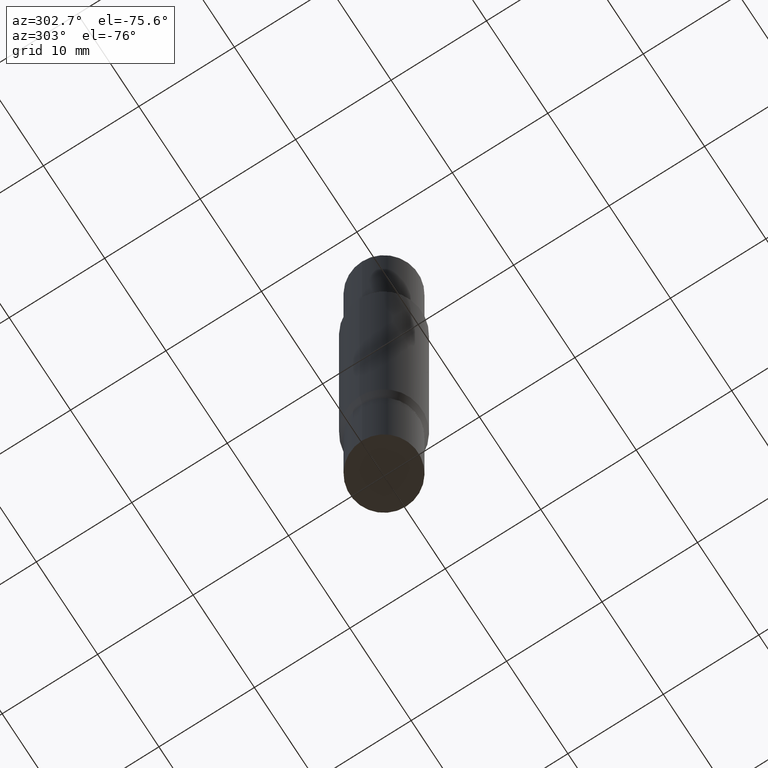
[diagram: clean part render]
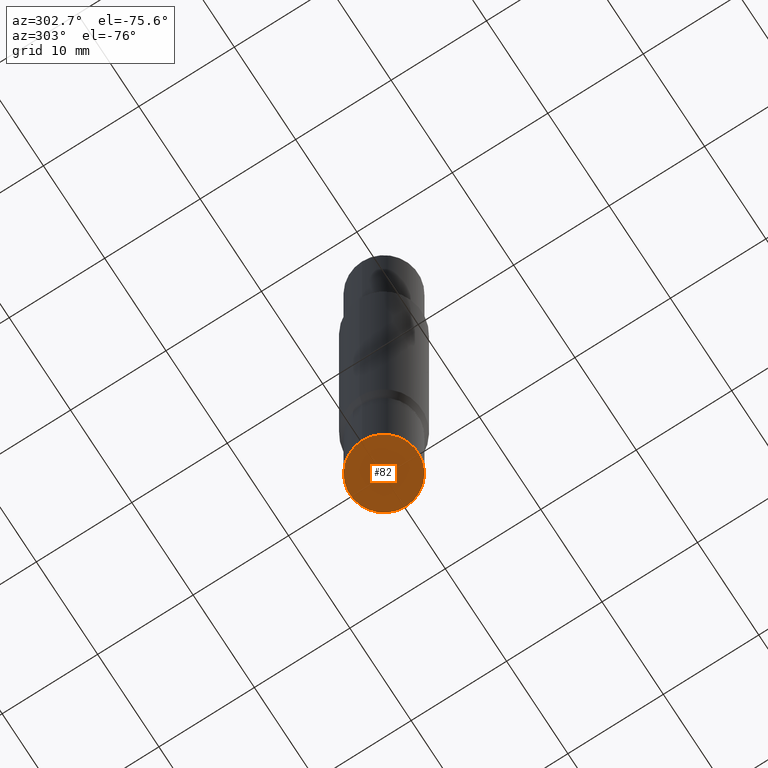
[diagram: same view with one face highlighted and labeled with its STEP entity id]
A machine part, auxiliary view. The second image highlights one B-rep face of the part: STEP entity #82.
In plain terms, the highlighted planar face has unit normal (-0, 0, 1).
Its self-contained STEP definition (entity closure, byte-faithful):
#20 = AXIS2_PLACEMENT_3D ( 'NONE', #774, #110, #921 ) ;
#24 = PLANE ( 'NONE',  #631 ) ;
#77 = EDGE_CURVE ( 'NONE', #473, #169, #647, .T. ) ;
#82 = ADVANCED_FACE ( 'NONE', ( #642 ), #24, .F. ) ;
#110 = DIRECTION ( 'NONE',  ( -2.445468806185136597E-29, 3.491481338843145583E-15, 1.000000000000000000 ) ) ;
#169 = VERTEX_POINT ( 'NONE', #357 ) ;
#273 = EDGE_LOOP ( 'NONE', ( #423, #815 ) ) ;
#327 = CARTESIAN_POINT ( 'NONE',  ( 6.155389339687910369E-29, -8.668961764414927934E-15, -2.500000000000000000 ) ) ;
#357 = CARTESIAN_POINT ( 'NONE',  ( -0.1406000000000000028, -6.856809925918377173E-15, -2.500000000000000000 ) ) ;
#423 = ORIENTED_EDGE ( 'NONE', *, *, #77, .F. ) ;
#458 = EDGE_CURVE ( 'NONE', #169, #473, #467, .T. ) ;
#467 = CIRCLE ( 'NONE', #519, 0.1406000000000000028 ) ;
#473 = VERTEX_POINT ( 'NONE', #580 ) ;
#488 = DIRECTION ( 'NONE',  ( 1.000000000000000000, -6.982962677686272233E-15, 0.000000000000000000 ) ) ;
#519 = AXIS2_PLACEMENT_3D ( 'NONE', #867, #782, #488 ) ;
#580 = CARTESIAN_POINT ( 'NONE',  ( 0.1406000000000000028, -9.710507899590554837E-15, -2.500000000000000000 ) ) ;
#631 = AXIS2_PLACEMENT_3D ( 'NONE', #327, #637, #936 ) ;
#637 = DIRECTION ( 'NONE',  ( -2.438088387897960049E-29, 3.491481338843145188E-15, 1.000000000000000000 ) ) ;
#642 = FACE_OUTER_BOUND ( 'NONE', #273, .T. ) ;
#647 = CIRCLE ( 'NONE', #20, 0.1406000000000000028 ) ;
#774 = CARTESIAN_POINT ( 'NONE',  ( 6.113672015462842613E-29, -8.728703347107864943E-15, -2.500000000000000000 ) ) ;
#782 = DIRECTION ( 'NONE',  ( -2.445468806185136597E-29, 3.491481338843145583E-15, 1.000000000000000000 ) ) ;
#815 = ORIENTED_EDGE ( 'NONE', *, *, #458, .F. ) ;
#867 = CARTESIAN_POINT ( 'NONE',  ( 6.113672015462842613E-29, -8.728703347107864943E-15, -2.500000000000000000 ) ) ;
#921 = DIRECTION ( 'NONE',  ( 1.000000000000000000, -6.982962677686272233E-15, 0.000000000000000000 ) ) ;
#936 = DIRECTION ( 'NONE',  ( 1.000000000000000000, -6.982962677686265922E-15, 4.876176775795935793E-29 ) ) ;